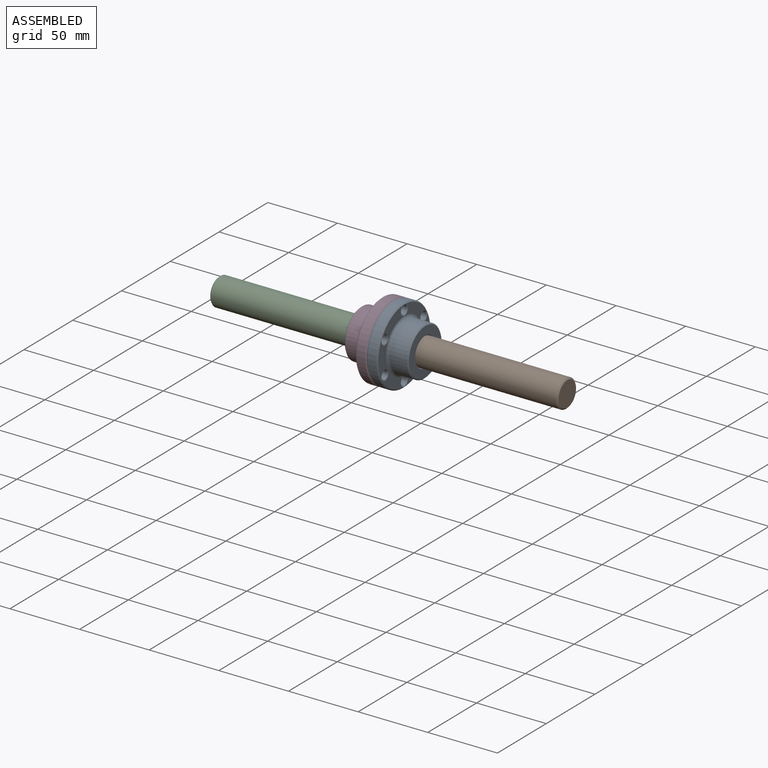
[diagram: assembled view]
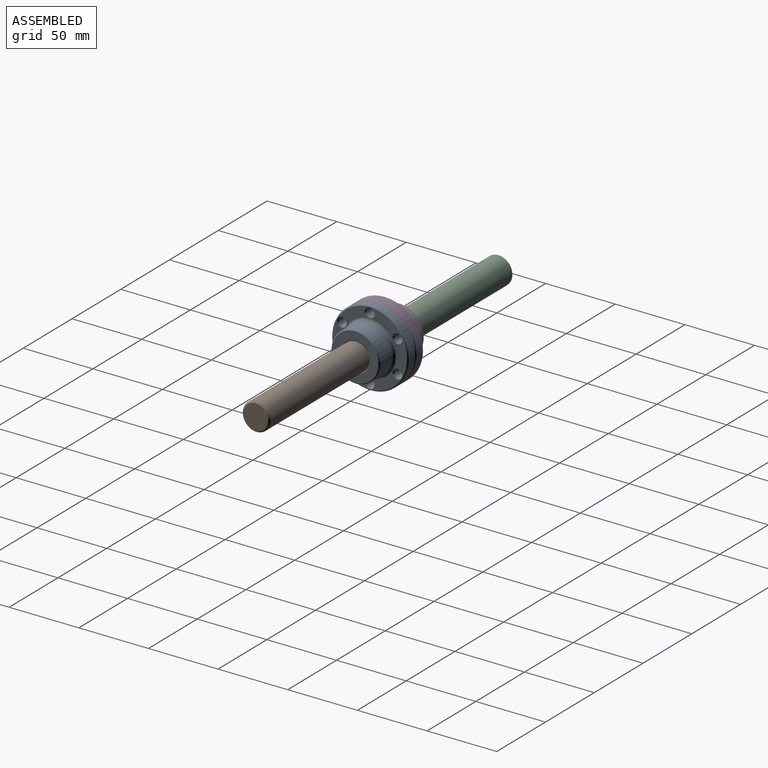
[diagram: assembled view, second angle]
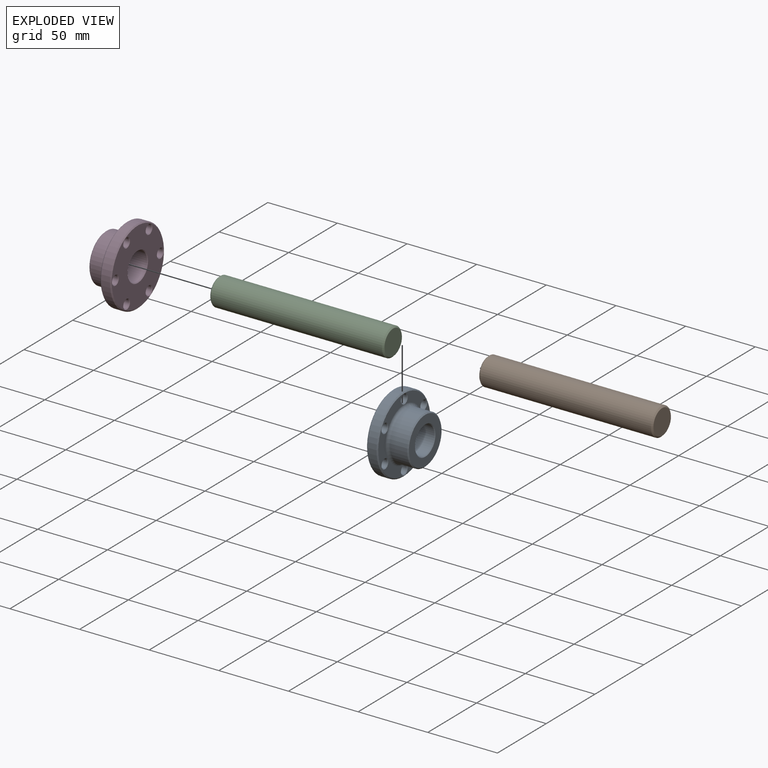
[diagram: exploded view]
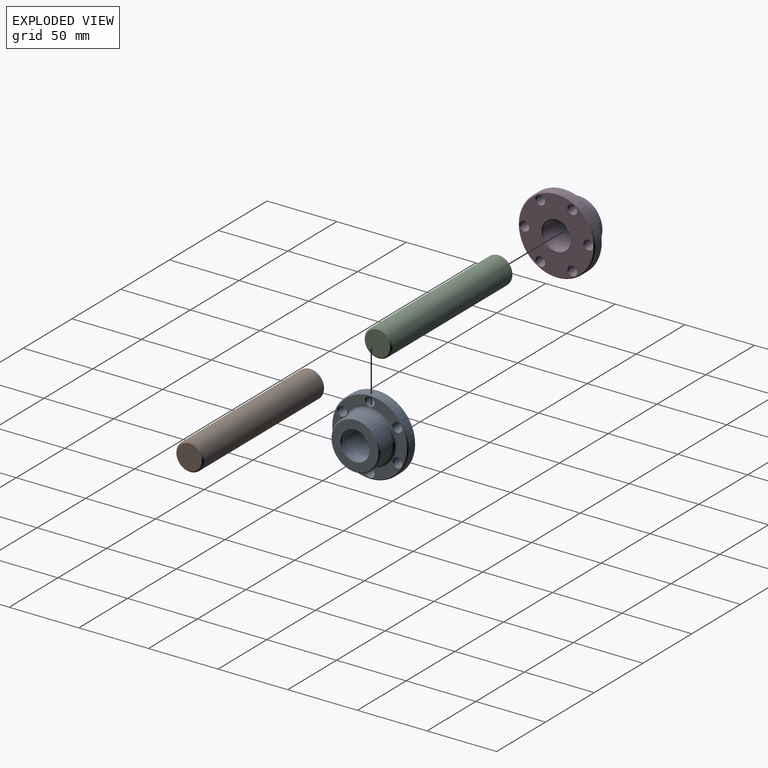
[diagram: exploded view, second angle]
ASSEMBLY  parts=4 mates=3
PART A: 30 faces, bbox 23x55x55 mm
  f0: cylinder r=10.01mm len=22mm, axis (-1,0,0), area 1383.7mm2, adj f17,f22
  f1: cylinder r=17.5mm len=35mm, axis (-1,0,0), area 1347mm2, adj f6,f7
  f2: plane 33.5x33.5mm, normal (1,0,0), area 534.4mm2, adj f7,f22
  f3: plane 53.5x53.5mm, normal (-1,0,0), area 1670.1mm2, adj f9,f16,f17,f18,f19,f20,f21,f29
  f4: cylinder r=27.5mm len=55mm, axis (-1,0,0), area 1123.1mm2, adj f8,f9
  f5: plane 53.5x53.5mm, normal (1,0,0), area 822.5mm2, adj f6,f8,f23,f24,f25,f26,f27,f28
  f6: torus R=19.5mm, axis (1,0,0), area 359.8mm2, adj f1,f5
  f7: cone r=16.75mm half-angle=45deg, axis (-1,0,0), area 114.1mm2, adj f1,f2
  f8: cone r=26.75mm half-angle=45deg, axis (-1,0,0), area 180.8mm2, adj f4,f5
  f9: cone r=27.5mm half-angle=45deg, axis (1,0,0), area 180.8mm2, adj f3,f4
  f10: cylinder r=3mm len=7mm, axis (-1,0,0), area 131.9mm2, adj f16,f23
  f11: cylinder r=3mm len=7mm, axis (-1,0,0), area 131.9mm2, adj f28,f29
  f12: cylinder r=3mm len=7mm, axis (-1,0,0), area 131.9mm2, adj f21,f27
  f13: cylinder r=3mm len=7mm, axis (-1,0,0), area 131.9mm2, adj f20,f25
  f14: cylinder r=3mm len=7mm, axis (-1,0,0), area 131.9mm2, adj f19,f26
  f15: cylinder r=3mm len=7mm, axis (-1,0,0), area 131.9mm2, adj f18,f24
  f16: cone r=3mm half-angle=45deg, axis (-1,0,0), area 14.4mm2, adj f3,f10
  f17: cone r=10.51mm half-angle=45deg, axis (-1,0,0), area 45.6mm2, adj f0,f3
  f18: cone r=3mm half-angle=45deg, axis (-1,0,0), area 14.4mm2, adj f3,f15
  f19: cone r=3mm half-angle=45deg, axis (-1,0,0), area 14.4mm2, adj f3,f14
  f20: cone r=3mm half-angle=45deg, axis (-1,0,0), area 14.4mm2, adj f3,f13
  f21: cone r=3mm half-angle=45deg, axis (-1,0,0), area 14.4mm2, adj f3,f12
  f22: cone r=10.01mm half-angle=45deg, axis (1,0,0), area 45.6mm2, adj f0,f2
  f23: cone r=3.5mm half-angle=45deg, axis (1,0,0), area 14.4mm2, adj f5,f10
  f24: cone r=3.5mm half-angle=45deg, axis (1,0,0), area 14.4mm2, adj f5,f15
  f25: cone r=3.5mm half-angle=45deg, axis (1,0,0), area 14.4mm2, adj f5,f13
  f26: cone r=3.5mm half-angle=45deg, axis (1,0,0), area 14.4mm2, adj f5,f14
  f27: cone r=3.5mm half-angle=45deg, axis (1,0,0), area 14.4mm2, adj f5,f12
  f28: cone r=3.5mm half-angle=45deg, axis (1,0,0), area 14.4mm2, adj f5,f11
  f29: cone r=3mm half-angle=45deg, axis (-1,0,0), area 14.4mm2, adj f3,f11
PART B: 9 faces, bbox 125x21.6x21.6 mm
  f0: cylinder r=10mm len=122.79mm, axis (-1,0,0), area 7715.3mm2, adj f7,f8
  f1: plane 17.79x17.79mm, normal (1,0,0), area 248.6mm2, adj f5
  f2: plane 17.79x17.79mm, normal (-1,0,0), area 248.6mm2, adj f6
  f3: cone r=10mm half-angle=45deg, axis (1,0,0), area 72.1mm2, adj f6,f7
  f4: cone r=9mm half-angle=45deg, axis (-1,0,0), area 72.1mm2, adj f5,f8
  f5: torus R=8.9mm, axis (1,0,0), area 11.1mm2, adj f1,f4
  f6: torus R=8.9mm, axis (1,0,0), area 11.1mm2, adj f2,f3
  f7: torus R=9.75mm, axis (-1,0,0), area 12.3mm2, adj f0,f3
  f8: torus R=9.75mm, axis (1,0,0), area 12.3mm2, adj f0,f4
PART C: same geometry as B
PART D: same geometry as A
PLACE A t=(129.54,26.52,26.89)mm
PLACE B t=(126.54,26.52,26.89)mm fixed
PLACE C rot(axis=(1,0,0),90deg) t=(1.54,26.52,26.89)mm
PLACE D rot(axis=(0,-0.71,-0.71),180deg) t=(133.54,26.52,26.89)mm
MATE fastened C.f0 <-> D.f4  axis (1,0,0) through (131.54,26.52,26.89)mm
MATE fastened A.f4 <-> B.f0  axis (-1,0,0) through (131.54,26.52,26.89)mm
MATE fastened D.f4 <-> A.f4  axis (1,0,0) through (131.54,26.52,26.89)mm
